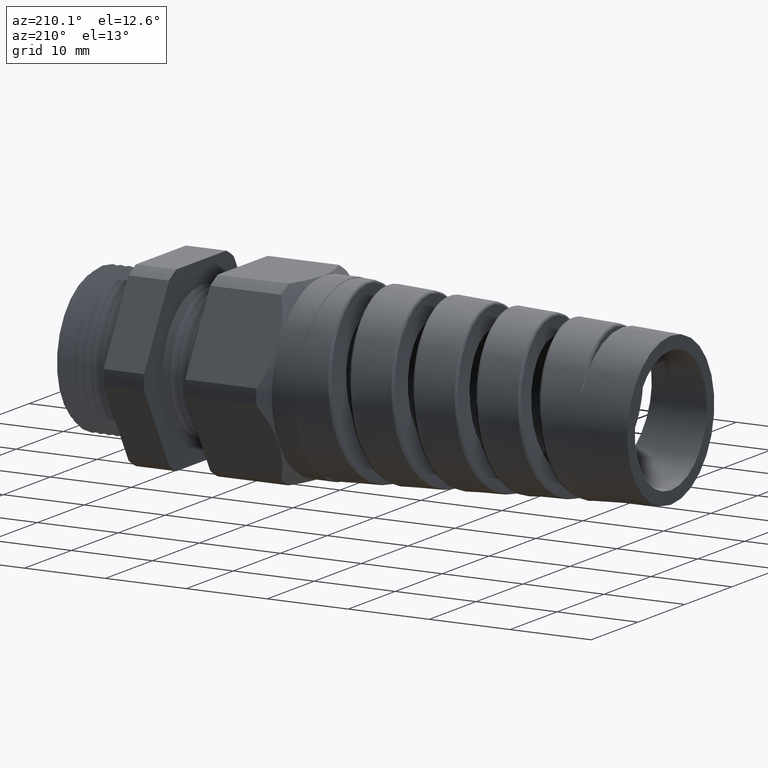
[diagram: clean part render]
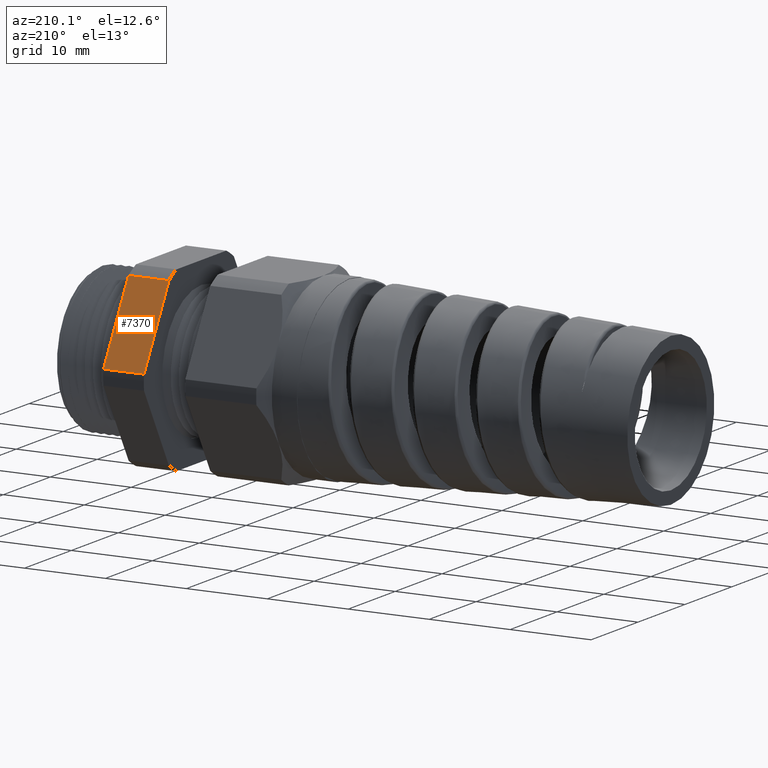
[diagram: same view with one face highlighted and labeled with its STEP entity id]
A machine part, auxiliary view. The second image highlights one B-rep face of the part: STEP entity #7370.
In plain terms, the highlighted planar face has unit normal (0, 0.866, 0.5).
Its self-contained STEP definition (entity closure, byte-faithful):
#938 = FACE_OUTER_BOUND ( 'NONE', #7327, .T. ) ;
#939 = DIRECTION ( 'NONE',  ( -1.000000000000000000, 0.0000000000000000000, 0.0000000000000000000 ) ) ;
#940 = VECTOR ( 'NONE', #939, 39.37007874015748100 ) ;
#941 = CARTESIAN_POINT ( 'NONE',  ( 0.0000000000000000000, 0.4815054990391101600, 0.03600801154045398000 ) ) ;
#942 = LINE ( 'NONE', #941, #940 ) ;
#943 = CARTESIAN_POINT ( 'NONE',  ( -0.5068503937007874400, 0.4815054990391101600, 0.03600801154045398000 ) ) ;
#944 = DIRECTION ( 'NONE',  ( 0.0000000000000000000, 0.4999999999999998300, -0.8660254037844386000 ) ) ;
#945 = VECTOR ( 'NONE', #944, 39.37007874015748900 ) ;
#946 = CARTESIAN_POINT ( 'NONE',  ( -0.5068503937007874400, 0.5942210506462307600, -0.1592210506462307900 ) ) ;
#947 = LINE ( 'NONE', #946, #945 ) ;
#999 = DIRECTION ( 'NONE',  ( 0.0000000000000000000, -0.4999999999999998300, 0.8660254037844386000 ) ) ;
#1000 = DIRECTION ( 'NONE',  ( 0.0000000000000000000, 0.8660254037844387100, 0.4999999999999998900 ) ) ;
#1001 = CARTESIAN_POINT ( 'NONE',  ( 0.0000000000000000000, 0.2719366022533514200, 0.3989919884595461400 ) ) ;
#1002 = AXIS2_PLACEMENT_3D ( 'NONE', #1001, #1000, #999 ) ;
#1003 = PLANE ( 'NONE',  #1002 ) ;
#1131 = CARTESIAN_POINT ( 'NONE',  ( 0.0000000000000000000, 0.2719366022533514200, 0.3989919884595460900 ) ) ;
#1132 = LINE ( 'NONE', #1131, #9157 ) ;
#1148 = CARTESIAN_POINT ( 'NONE',  ( -0.5068503937007874400, 0.2719366022533514200, 0.3989919884595460900 ) ) ;
#4982 = EDGE_CURVE ( 'NONE', #5062, #4983, #6760, .T. ) ;
#4983 = VERTEX_POINT ( 'NONE', #6820 ) ;
#5062 = VERTEX_POINT ( 'NONE', #7117 ) ;
#6759 = CARTESIAN_POINT ( 'NONE',  ( -0.3100000000000000000, 0.5942210506462307600, -0.1592210506462307900 ) ) ;
#6760 = LINE ( 'NONE', #6759, #6822 ) ;
#6820 = CARTESIAN_POINT ( 'NONE',  ( -0.3100000000000000000, 0.2719366022533514200, 0.3989919884595460900 ) ) ;
#6821 = DIRECTION ( 'NONE',  ( 0.0000000000000000000, -0.4999999999999998300, 0.8660254037844386000 ) ) ;
#6822 = VECTOR ( 'NONE', #6821, 39.37007874015748900 ) ;
#7117 = CARTESIAN_POINT ( 'NONE',  ( -0.3100000000000000000, 0.4815054990391101600, 0.03600801154045398000 ) ) ;
#7320 = EDGE_CURVE ( 'NONE', #7647, #7323, #947, .T. ) ;
#7323 = VERTEX_POINT ( 'NONE', #943 ) ;
#7324 = ORIENTED_EDGE ( 'NONE', *, *, #7320, .F. ) ;
#7325 = ORIENTED_EDGE ( 'NONE', *, *, #7655, .F. ) ;
#7327 = EDGE_LOOP ( 'NONE', ( #7325, #7328, #7330, #7324 ) ) ;
#7328 = ORIENTED_EDGE ( 'NONE', *, *, #4982, .F. ) ;
#7330 = ORIENTED_EDGE ( 'NONE', *, *, #7331, .T. ) ;
#7331 = EDGE_CURVE ( 'NONE', #5062, #7323, #942, .T. ) ;
#7370 = ADVANCED_FACE ( 'NONE', ( #938 ), #1003, .T. ) ;
#7647 = VERTEX_POINT ( 'NONE', #1148 ) ;
#7655 = EDGE_CURVE ( 'NONE', #4983, #7647, #1132, .T. ) ;
#9156 = DIRECTION ( 'NONE',  ( -1.000000000000000000, 0.0000000000000000000, 0.0000000000000000000 ) ) ;
#9157 = VECTOR ( 'NONE', #9156, 39.37007874015748100 ) ;